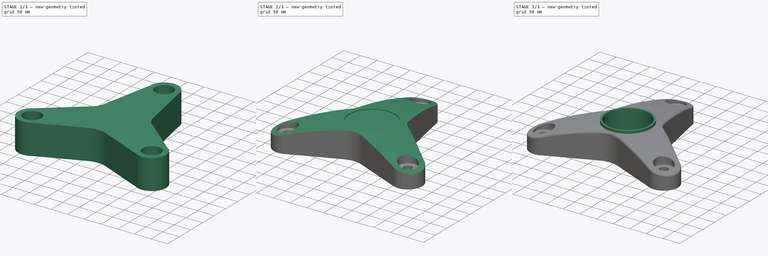
[diagram: build sequence overview — one tinted view per stage of 3, left to right]
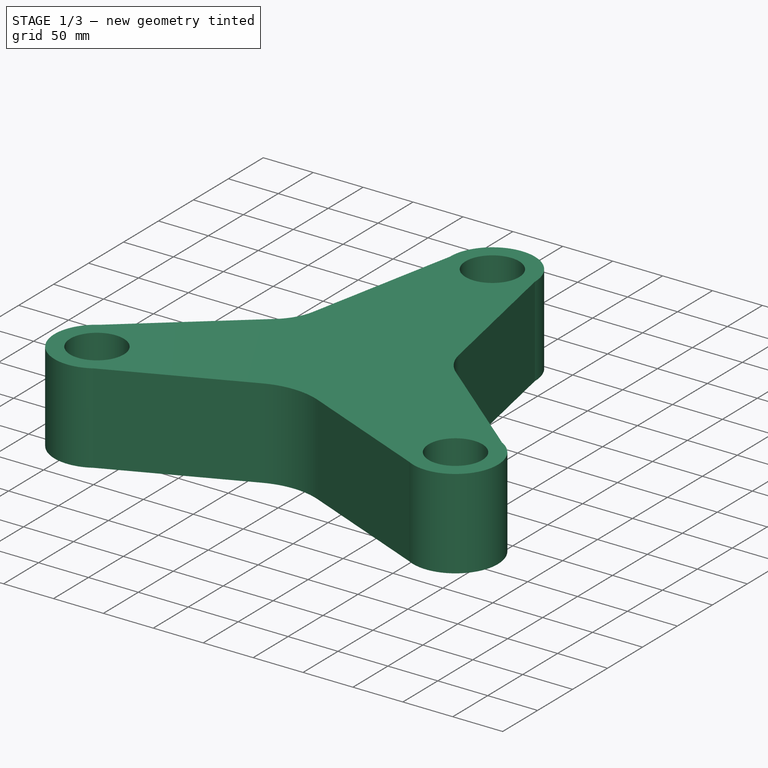
[diagram: stage 1 of 3 — iso view after this stage's code; geometry added in this stage tinted green]
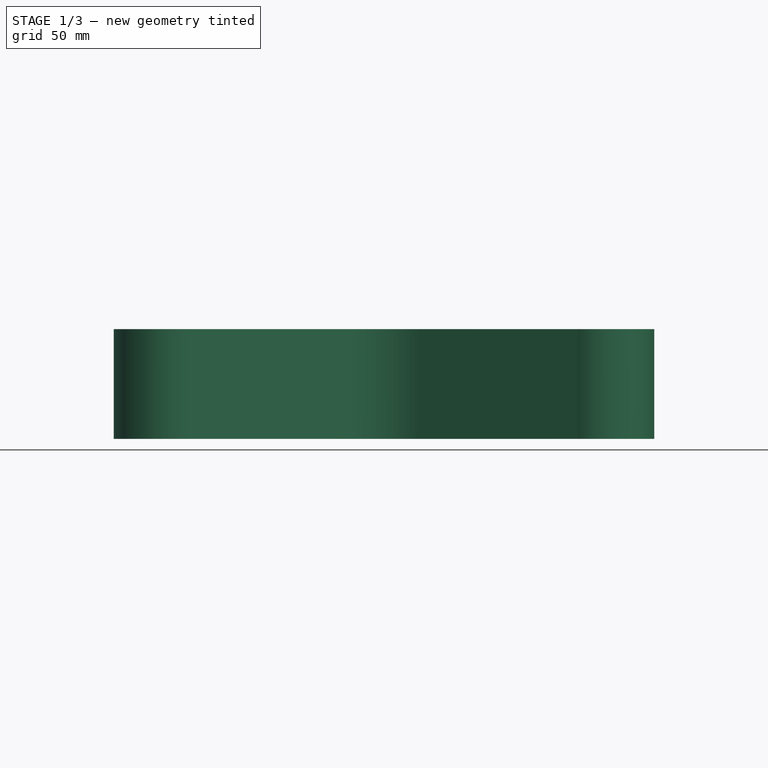
[diagram: stage 1 of 3 — front view after this stage's code; geometry added in this stage tinted green]
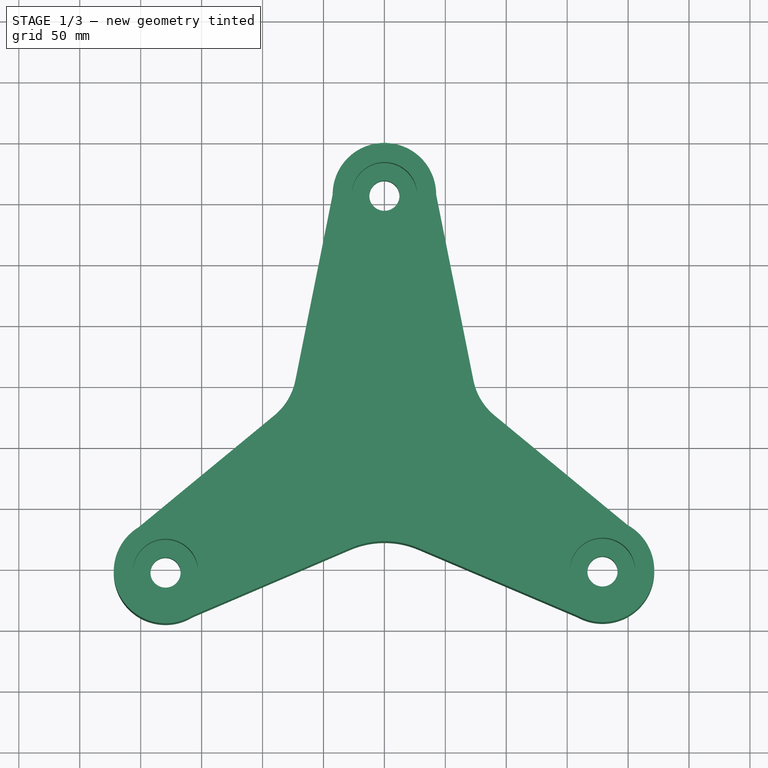
[diagram: stage 1 of 3 — top view after this stage's code; geometry added in this stage tinted green]
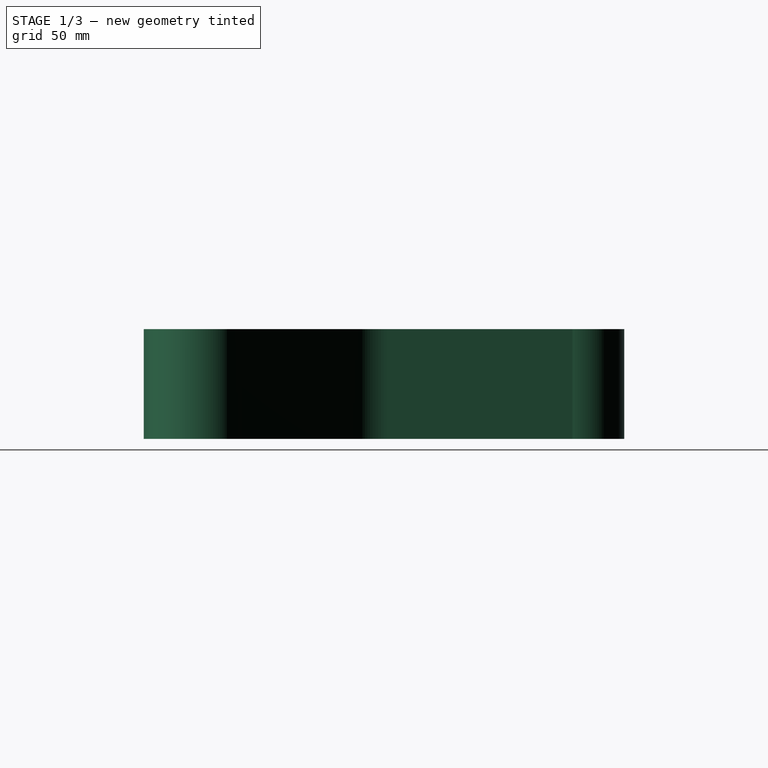
[diagram: stage 1 of 3 — right view after this stage's code; geometry added in this stage tinted green]
FCSTD DOCUMENT  (FreeCAD 0.21R33771 (Git))
Label: ex66
License: All rights reserved
LicenseURL: https://en.wikipedia.org/wiki/All_rights_reserved
objects: Sketcher::SketchObject×7, PartDesign::Pocket×3, PartDesign::Pad×2, PartDesign::Groove×2, PartDesign::Fillet×1, PartDesign::Body×1
note: 24 computed .brp shape members not serialized (recipe doc carries the construction recipe); baked Part::Feature solids carry a one-line shape summary decoded from their .brp

FEATURE [Sketcher::SketchObject] Sketch
  FullyConstrained = false
  MapMode = 5
  Support = -> [XY_Plane]
  sketch-geometry (22):
    g0: ArcOfCircle CenterX=0 CenterY=206.602 CenterZ=0 NormalX=0 NormalY=0 NormalZ=1 AngleXU=0 Radius=42.495 StartAngle=0 EndAngle=3.14159
    g1: ArcOfCircle CenterX=178.967 CenterY=-101.739 CenterZ=0 NormalX=0 NormalY=0 NormalZ=1 AngleXU=0 Radius=42.495 StartAngle=4.20932 EndAngle=7.35092
    g2: ArcOfCircle CenterX=-179.62 CenterY=-102.657 CenterZ=0 NormalX=0 NormalY=0 NormalZ=1 AngleXU=0 Radius=42.495 StartAngle=2.11592 EndAngle=5.25752
    g3: LineSegment StartX=-0.600772 StartY=0.699407 StartZ=0 EndX=-179.62 EndY=-102.657 EndZ=0
    g4: LineSegment StartX=0 StartY=-0.111552 StartZ=0 EndX=0 EndY=206.602 EndZ=0
    g5: LineSegment StartX=-0.051795 StartY=1.61774 StartZ=0 EndX=178.967 EndY=-101.739 EndZ=0
    g6: LineSegment StartX=2.416e-13 StartY=-72.603 StartZ=0 EndX=62.876 EndY=36.3015 EndZ=0
    g7: LineSegment StartX=62.876 StartY=36.3015 StartZ=0 EndX=-62.876 EndY=36.3015 EndZ=0
    g8: LineSegment StartX=-62.876 StartY=36.3015 StartZ=0 EndX=2.416e-13 EndY=-72.603 EndZ=0
    g9: Circle CenterX=0 CenterY=0 CenterZ=0 NormalX=0 NormalY=0 NormalZ=1 AngleXU=0 Radius=72.603
    g10: LineSegment StartX=-90.3203 StartY=25.4176 StartZ=0 EndX=-201.655 EndY=-66.3215 EndZ=0
    g11: LineSegment StartX=-28.0171 StartY=-83.5801 StartZ=0 EndX=-157.585 EndY=-138.993 EndZ=0
    g12: LineSegment StartX=-201.655 StartY=-66.3215 StartZ=0 EndX=-157.585 EndY=-138.993 EndZ=0
    g13: LineSegment StartX=28.0855 StartY=-83.522 StartZ=0 EndX=158.48 EndY=-138.969 EndZ=0
    g14: LineSegment StartX=90.3203 StartY=25.4176 StartZ=0 EndX=199.455 EndY=-64.5088 EndZ=0
    g15: LineSegment StartX=199.455 StartY=-64.5088 StartZ=0 EndX=158.48 EndY=-138.969 EndZ=0
    g16: LineSegment StartX=-42.495 StartY=206.602 StartZ=0 EndX=-73.0539 EndY=54.2375 EndZ=0
    g17: LineSegment StartX=73.0539 StartY=54.2375 StartZ=0 EndX=42.495 EndY=206.602 EndZ=0
    g18: LineSegment StartX=-42.495 StartY=206.602 StartZ=0 EndX=42.495 EndY=206.602 EndZ=0
    g19: ArcOfCircle CenterX=-122.188 CenterY=64.0921 CenterZ=0 NormalX=0 NormalY=0 NormalZ=1 AngleXU=0 Radius=50.1125 StartAngle=5.40159 EndAngle=6.08525
    g20: ArcOfCircle CenterX=122.188 CenterY=64.0921 CenterZ=0 NormalX=0 NormalY=0 NormalZ=1 AngleXU=0 Radius=50.1125 StartAngle=3.33953 EndAngle=4.02319
    g21: ArcOfCircle CenterX=0.102324 CenterY=-149.329 CenterZ=0 NormalX=0 NormalY=0 NormalZ=1 AngleXU=0 Radius=71.51 StartAngle=1.16873 EndAngle=1.97493
  constraints (46):
    c: PointOnObject(g0,g-2)
    c: Equal(g2,g0)
    c: Equal(g0,g1)
    c: Coincident(g3,g2)
    c: Coincident(g4,g0)
    c: Coincident(g5,g1)
    c: Equal(g3,g5)
    c: Equal(g4,g3)
    c: Angle(g4,g3) = 2.0944
    c: Angle(g5,g4) = 2.0944
    c: Coincident(g6,g7)
    c: Coincident(g7,g8)
    c: Coincident(g8,g6)
    c: Equal(g6,g7)
    c: Equal(g6,g8)
    c: PointOnObject(g6,g9)
    c: PointOnObject(g7,g9)
    c: PointOnObject(g8,g9)
    c: Horizontal(g7)
    c: Coincident(g12,g10)
    c: Coincident(g12,g11)
    c: PointOnObject(g2,g12)
    c: PointOnObject(g13,g1)
    c: Coincident(g15,g14)
    c: Coincident(g15,g13)
    c: PointOnObject(g1,g15)
    c: Coincident(g18,g16)
    c: Coincident(g18,g17)
    c: Horizontal(g18)
    c: PointOnObject(g0,g18)
    c: Tangent(g16,g19) = 1.5708
    c: Tangent(g10,g19) = 1.5708
    c: Tangent(g17,g20) = 1.5708
    c: Tangent(g14,g20) = -1.5708
    c: Tangent(g11,g21) = -1.5708
    c: Tangent(g13,g21) = 1.5708
    c: Coincident(g0,g17)
    c: Coincident(g0,g16)
    c: Coincident(g2,g11)
    c: Coincident(g2,g10)
    c: Coincident(g1,g15)
    c: PointOnObject(g1,g15)
    c: Horizontal(g16,g17)
    c: Symmetric(g16,g17,g4)
    c: Symmetric(g10,g14,g4)
    c: Distance(g12) = 84.99
FEATURE [PartDesign::Pad] Pad
  Direction = (0,0,1)
  Length = 90
  Length2 = 10
  Profile = -> Sketch
  ReferenceAxis = -> Sketch [N_Axis]
  Type = 0
FEATURE [Sketcher::SketchObject] Sketch001
  FullyConstrained = false
  MapMode = 5
  Placement = pos=(0,0,90) rot=(0,0,1;0rad)
  sketch-geometry (25):
    g0: ArcOfCircle CenterX=0 CenterY=206.602 CenterZ=0 NormalX=0 NormalY=0 NormalZ=1 AngleXU=0 Radius=42.495 StartAngle=0 EndAngle=3.14159
    g1: ArcOfCircle CenterX=178.967 CenterY=-101.739 CenterZ=0 NormalX=0 NormalY=0 NormalZ=1 AngleXU=0 Radius=42.495 StartAngle=4.20932 EndAngle=7.35092
    g2: ArcOfCircle CenterX=-179.62 CenterY=-102.657 CenterZ=0 NormalX=0 NormalY=0 NormalZ=1 AngleXU=0 Radius=42.495 StartAngle=2.11592 EndAngle=5.25752
    g3: LineSegment StartX=-0.600772 StartY=0.699407 StartZ=0 EndX=-179.62 EndY=-102.657 EndZ=0
    g4: LineSegment StartX=0 StartY=-0.111552 StartZ=0 EndX=0 EndY=206.602 EndZ=0
    g5: LineSegment StartX=-0.051795 StartY=1.61774 StartZ=0 EndX=178.967 EndY=-101.739 EndZ=0
    g6: LineSegment StartX=2.416e-13 StartY=-72.603 StartZ=0 EndX=62.876 EndY=36.3015 EndZ=0
    g7: LineSegment StartX=62.876 StartY=36.3015 StartZ=0 EndX=-62.876 EndY=36.3015 EndZ=0
    g8: LineSegment StartX=-62.876 StartY=36.3015 StartZ=0 EndX=2.416e-13 EndY=-72.603 EndZ=0
    g9: Circle CenterX=0 CenterY=0 CenterZ=0 NormalX=0 NormalY=0 NormalZ=1 AngleXU=0 Radius=72.603
    g10: LineSegment StartX=-90.3203 StartY=25.4176 StartZ=0 EndX=-201.655 EndY=-66.3215 EndZ=0
    g11: LineSegment StartX=-28.0171 StartY=-83.5801 StartZ=0 EndX=-157.585 EndY=-138.993 EndZ=0
    g12: LineSegment StartX=-201.655 StartY=-66.3215 StartZ=0 EndX=-157.585 EndY=-138.993 EndZ=0
    g13: LineSegment StartX=28.0855 StartY=-83.522 StartZ=0 EndX=158.48 EndY=-138.969 EndZ=0
    g14: LineSegment StartX=90.3203 StartY=25.4176 StartZ=0 EndX=199.455 EndY=-64.5088 EndZ=0
    g15: LineSegment StartX=199.455 StartY=-64.5088 StartZ=0 EndX=158.48 EndY=-138.969 EndZ=0
    g16: LineSegment StartX=-42.495 StartY=206.602 StartZ=0 EndX=-73.0539 EndY=54.2375 EndZ=0
    g17: LineSegment StartX=73.0539 StartY=54.2375 StartZ=0 EndX=42.495 EndY=206.602 EndZ=0
    g18: LineSegment StartX=-42.495 StartY=206.602 StartZ=0 EndX=42.495 EndY=206.602 EndZ=0
    g19: ArcOfCircle CenterX=-122.188 CenterY=64.0921 CenterZ=0 NormalX=0 NormalY=0 NormalZ=1 AngleXU=0 Radius=50.1125 StartAngle=5.40159 EndAngle=6.08525
    g20: ArcOfCircle CenterX=122.188 CenterY=64.0921 CenterZ=0 NormalX=0 NormalY=0 NormalZ=1 AngleXU=0 Radius=50.1125 StartAngle=3.33953 EndAngle=4.02319
    g21: ArcOfCircle CenterX=0.102324 CenterY=-149.329 CenterZ=0 NormalX=0 NormalY=0 NormalZ=1 AngleXU=0 Radius=71.51 StartAngle=1.16873 EndAngle=1.97493
    g22: Circle CenterX=-179.62 CenterY=-102.657 CenterZ=0 NormalX=0 NormalY=0 NormalZ=1 AngleXU=0 Radius=26.8066
    g23: Circle CenterX=178.967 CenterY=-101.739 CenterZ=0 NormalX=0 NormalY=0 NormalZ=1 AngleXU=0 Radius=26.8066
    g24: Circle CenterX=0 CenterY=206.602 CenterZ=0 NormalX=0 NormalY=0 NormalZ=1 AngleXU=0 Radius=26.8066
  constraints (51):
    c: PointOnObject(g0,g-2)
    c: Equal(g2,g0)
    c: Equal(g0,g1)
    c: Coincident(g3,g2)
    c: Coincident(g4,g0)
    c: Coincident(g5,g1)
    c: Equal(g3,g5)
    c: Equal(g4,g3)
    c: Angle(g4,g3) = 2.0944
    c: Angle(g5,g4) = 2.0944
    c: Coincident(g6,g7)
    c: Coincident(g7,g8)
    c: Coincident(g8,g6)
    c: Equal(g6,g7)
    c: Equal(g6,g8)
    c: PointOnObject(g6,g9)
    c: PointOnObject(g7,g9)
    c: PointOnObject(g8,g9)
    c: Horizontal(g7)
    c: Coincident(g12,g10)
    c: Coincident(g12,g11)
    c: PointOnObject(g2,g12)
    c: PointOnObject(g13,g1)
    c: Coincident(g15,g14)
    c: Coincident(g15,g13)
    c: PointOnObject(g1,g15)
    c: Coincident(g18,g16)
    c: Coincident(g18,g17)
    c: Horizontal(g18)
    c: PointOnObject(g0,g18)
    c: Tangent(g16,g19) = 1.5708
    c: Tangent(g10,g19) = 1.5708
    c: Tangent(g17,g20) = 1.5708
    c: Tangent(g14,g20) = -1.5708
    c: Tangent(g11,g21) = -1.5708
    c: Tangent(g13,g21) = 1.5708
    c: Coincident(g0,g17)
    c: Coincident(g0,g16)
    c: Coincident(g2,g11)
    c: Coincident(g2,g10)
    c: Coincident(g1,g15)
    c: PointOnObject(g1,g15)
    c: Horizontal(g16,g17)
    c: Symmetric(g16,g17,g4)
    c: Symmetric(g10,g14,g4)
    c: Distance(g12) = 84.99
    c: Coincident(g22,g2)
    c: Coincident(g23,g1)
    c: Coincident(g24,g0)
    c: Equal(g24,g23)
    c: Equal(g23,g22)
FEATURE [PartDesign::Pocket] Pocket
  BaseFeature = -> Pad
  Direction = (0,0,-1)
  Length = 51
  Length2 = 5
  Profile = -> Sketch001
  ReferenceAxis = -> Sketch001 [N_Axis]
  Type = 0
FEATURE [Sketcher::SketchObject] Sketch002
  FullyConstrained = false
  MapMode = 5
  Placement = pos=(0,0,90) rot=(0,0,1;0rad)
  sketch-geometry (25):
    g0: ArcOfCircle CenterX=0 CenterY=206.603 CenterZ=0 NormalX=0 NormalY=0 NormalZ=1 AngleXU=0 Radius=42.495 StartAngle=0 EndAngle=3.14159
    g1: ArcOfCircle CenterX=178.974 CenterY=-101.75 CenterZ=0 NormalX=0 NormalY=0 NormalZ=1 AngleXU=0 Radius=42.495 StartAngle=4.20865 EndAngle=7.35024
    g2: ArcOfCircle CenterX=-179.62 CenterY=-102.657 CenterZ=0 NormalX=0 NormalY=0 NormalZ=1 AngleXU=0 Radius=42.495 StartAngle=2.11605 EndAngle=5.25764
    g3: LineSegment StartX=-0.597144 StartY=0.701501 StartZ=0 EndX=-179.62 EndY=-102.657 EndZ=0
    g4: LineSegment StartX=0 StartY=-0.114364 StartZ=0 EndX=0 EndY=206.603 EndZ=0
    g5: LineSegment StartX=-0.0489775 StartY=1.60862 StartZ=0 EndX=178.974 EndY=-101.75 EndZ=0
    g6: LineSegment StartX=2.416e-13 StartY=-72.603 StartZ=0 EndX=62.876 EndY=36.3015 EndZ=0
    g7: LineSegment StartX=62.876 StartY=36.3015 StartZ=0 EndX=-62.876 EndY=36.3015 EndZ=0
    g8: LineSegment StartX=-62.876 StartY=36.3015 StartZ=0 EndX=2.416e-13 EndY=-72.603 EndZ=0
    g9: Circle CenterX=0 CenterY=0 CenterZ=0 NormalX=0 NormalY=0 NormalZ=1 AngleXU=0 Radius=72.603
    g10: LineSegment StartX=-90.3203 StartY=25.4163 StartZ=0 EndX=-201.659 EndY=-66.3243 EndZ=0
    g11: LineSegment StartX=-28.0185 StartY=-83.5797 StartZ=0 EndX=-157.581 EndY=-138.99 EndZ=0
    g12: LineSegment StartX=-201.659 StartY=-66.3243 StartZ=0 EndX=-157.581 EndY=-138.99 EndZ=0
    g13: LineSegment StartX=28.0875 StartY=-83.5226 StartZ=0 EndX=158.461 EndY=-138.967 EndZ=0
    g14: LineSegment StartX=90.3203 StartY=25.4163 StartZ=0 EndX=199.486 EndY=-64.5338 EndZ=0
    g15: LineSegment StartX=199.486 StartY=-64.5338 StartZ=0 EndX=158.461 EndY=-138.967 EndZ=0
    g16: LineSegment StartX=-42.495 StartY=206.603 StartZ=0 EndX=-73.053 EndY=54.2376 EndZ=0
    g17: LineSegment StartX=73.053 StartY=54.2376 StartZ=0 EndX=42.495 EndY=206.603 EndZ=0
    g18: LineSegment StartX=-42.495 StartY=206.603 StartZ=0 EndX=42.495 EndY=206.603 EndZ=0
    g19: ArcOfCircle CenterX=-122.188 CenterY=64.092 CenterZ=0 NormalX=0 NormalY=0 NormalZ=1 AngleXU=0 Radius=50.1135 StartAngle=5.40158 EndAngle=6.08525
    g20: ArcOfCircle CenterX=122.188 CenterY=64.092 CenterZ=0 NormalX=0 NormalY=0 NormalZ=1 AngleXU=0 Radius=50.1135 StartAngle=3.33952 EndAngle=4.0232
    g21: ArcOfCircle CenterX=0.10146 CenterY=-149.33 CenterZ=0 NormalX=0 NormalY=0 NormalZ=1 AngleXU=0 Radius=71.5113 StartAngle=1.1687 EndAngle=1.97493
    g22: Circle CenterX=-179.62 CenterY=-102.657 CenterZ=0 NormalX=0 NormalY=0 NormalZ=1 AngleXU=0 Radius=12.3837
    g23: Circle CenterX=178.974 CenterY=-101.75 CenterZ=0 NormalX=0 NormalY=0 NormalZ=1 AngleXU=0 Radius=12.3837
    g24: Circle CenterX=0 CenterY=206.603 CenterZ=0 NormalX=0 NormalY=0 NormalZ=1 AngleXU=0 Radius=12.3837
  constraints (51):
    c: PointOnObject(g0,g-2)
    c: Equal(g2,g0)
    c: Equal(g0,g1)
    c: Coincident(g3,g2)
    c: Coincident(g4,g0)
    c: Coincident(g5,g1)
    c: Equal(g3,g5)
    c: Equal(g4,g3)
    c: Angle(g4,g3) = 2.0944
    c: Angle(g5,g4) = 2.0944
    c: Coincident(g6,g7)
    c: Coincident(g7,g8)
    c: Coincident(g8,g6)
    c: Equal(g6,g7)
    c: Equal(g6,g8)
    c: PointOnObject(g6,g9)
    c: PointOnObject(g7,g9)
    c: PointOnObject(g8,g9)
    c: Horizontal(g7)
    c: Coincident(g12,g10)
    c: Coincident(g12,g11)
    c: PointOnObject(g2,g12)
    c: PointOnObject(g13,g1)
    c: Coincident(g15,g14)
    c: Coincident(g15,g13)
    c: PointOnObject(g1,g15)
    c: Coincident(g18,g16)
    c: Coincident(g18,g17)
    c: Horizontal(g18)
    c: PointOnObject(g0,g18)
    c: Tangent(g16,g19) = 1.5708
    c: Tangent(g10,g19) = 1.5708
    c: Tangent(g17,g20) = 1.5708
    c: Tangent(g14,g20) = -1.5708
    c: Tangent(g11,g21) = -1.5708
    c: Tangent(g13,g21) = 1.5708
    c: Coincident(g0,g17)
    c: Coincident(g0,g16)
    c: Coincident(g2,g11)
    c: Coincident(g2,g10)
    c: Coincident(g1,g15)
    c: PointOnObject(g1,g15)
    c: Horizontal(g16,g17)
    c: Symmetric(g16,g17,g4)
    c: Symmetric(g10,g14,g4)
    c: Distance(g12) = 84.99
    c: Coincident(g22,g2)
    c: Coincident(g23,g1)
    c: Coincident(g24,g0)
    c: Equal(g24,g23)
    c: Equal(g23,g22)
FEATURE [PartDesign::Pocket] Pocket001
  BaseFeature = -> Pocket
  Direction = (0,0,-1)
  Length = 5
  Length2 = 5
  Profile = -> Sketch002
  ReferenceAxis = -> Sketch002 [N_Axis]
  Type = 1
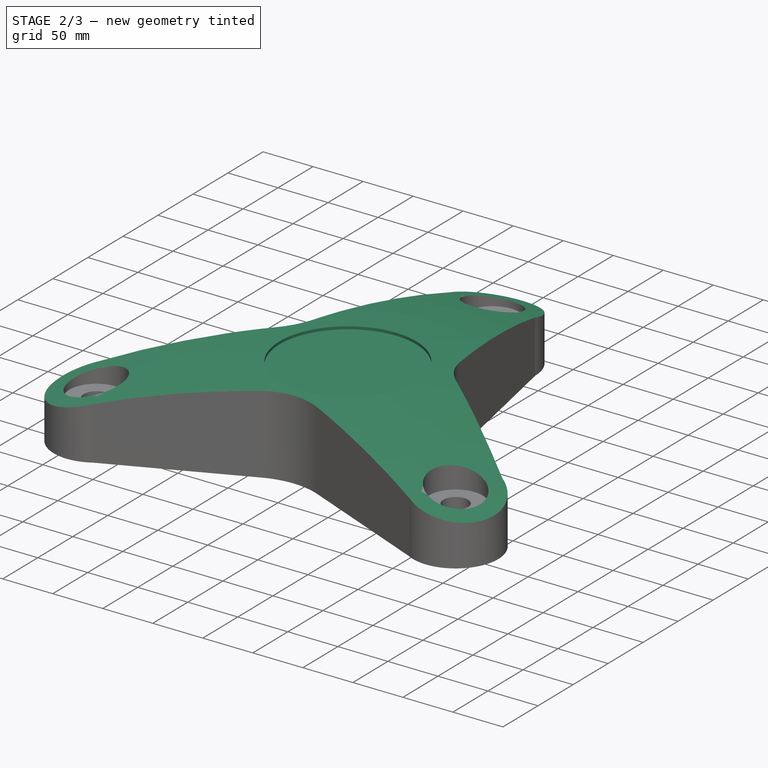
[diagram: stage 2 of 3 — iso view after this stage's code; geometry added in this stage tinted green]
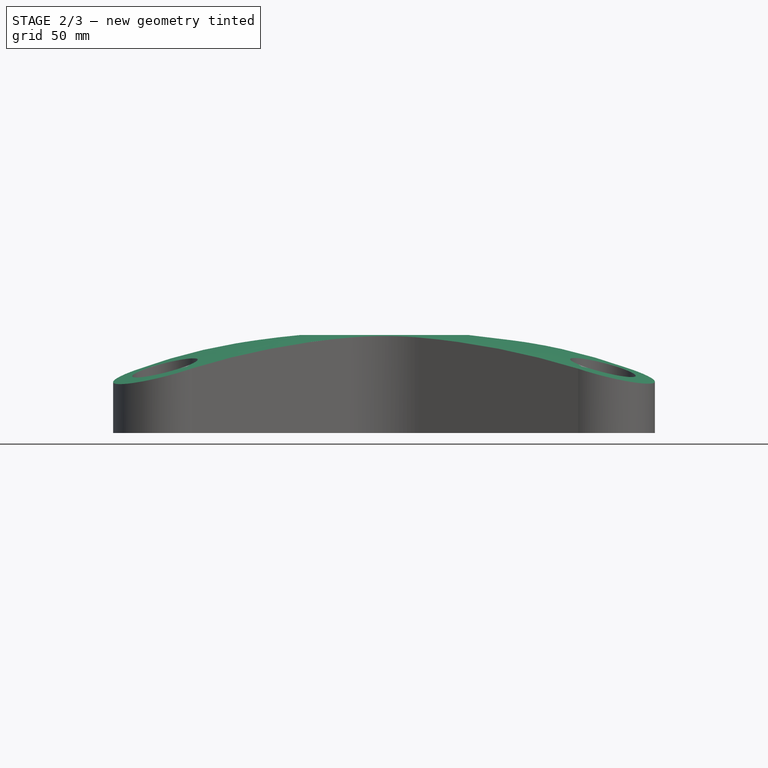
[diagram: stage 2 of 3 — front view after this stage's code; geometry added in this stage tinted green]
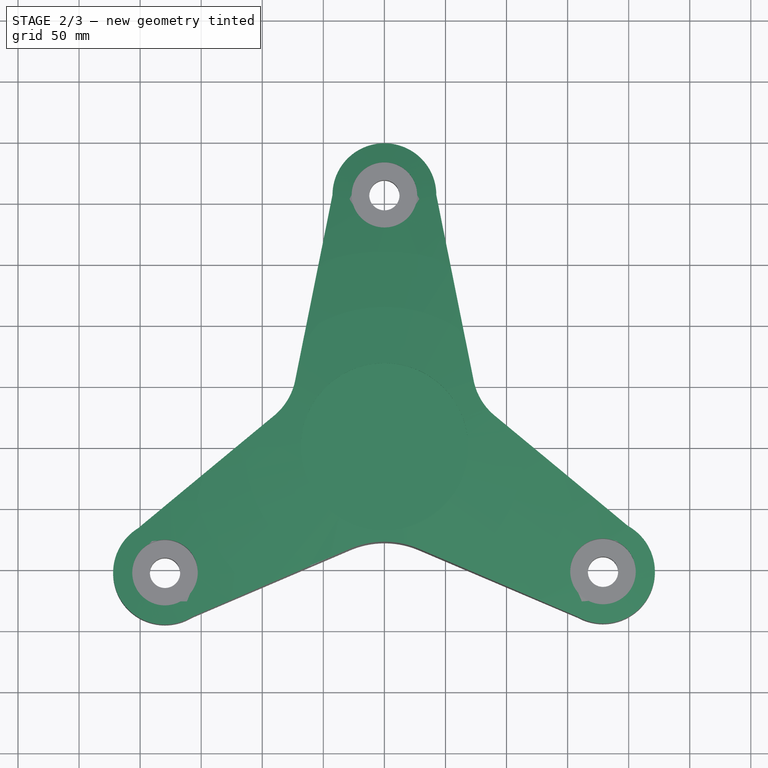
[diagram: stage 2 of 3 — top view after this stage's code; geometry added in this stage tinted green]
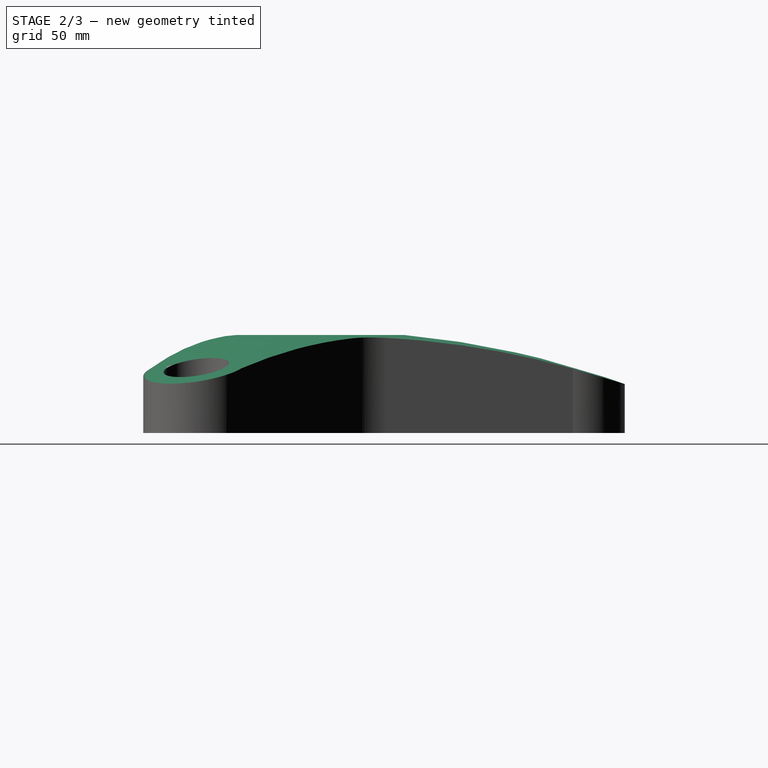
[diagram: stage 2 of 3 — right view after this stage's code; geometry added in this stage tinted green]
FEATURE [Sketcher::SketchObject] Sketch003
  FullyConstrained = false
  MapMode = 5
  Placement = pos=(0,0,0) rot=(1,0,0;1.5708rad)
  Support = -> [XZ_Plane]
  sketch-geometry (6):
    g0: ArcOfCircle CenterX=0 CenterY=-654.137 CenterZ=0 NormalX=0 NormalY=0 NormalZ=1 AngleXU=0 Radius=737.635 StartAngle=1.5708 EndAngle=2.41363
    g1: LineSegment StartX=4.52e-14 StartY=83.4983 StartZ=0 EndX=4.52e-14 EndY=418.682 EndZ=0
    g2: LineSegment StartX=4.52e-14 StartY=418.682 StartZ=0 EndX=-396.474 EndY=434.174 EndZ=0
    g3: LineSegment StartX=-396.474 StartY=434.174 StartZ=0 EndX=-396.474 EndY=434.174 EndZ=0
    g4: LineSegment StartX=-396.474 StartY=434.174 StartZ=0 EndX=-550.666 EndY=-163.349 EndZ=0
    g5: GeomPoint X=0 Y=340.049 Z=0
  constraints (10):
    c: PointOnObject(g0,g-2)
    c: Vertical(g1)
    c: Coincident(g3,g2)
    c: Vertical(g3)
    c: Coincident(g4,g3)
    c: Coincident(g0,g4)
    c: Coincident(g0,g1)
    c: PointOnObject(g5,g1)
    c: PointOnObject(g5,g-2)
    c: Coincident(g1,g2)
FEATURE [PartDesign::Groove] Groove
  Angle = 360
  Axis = (0,-2e-16,1)
  Base = (0,0,0)
  BaseFeature = -> Pocket001
  Profile = -> Sketch003
  ReferenceAxis = -> Sketch003 [V_Axis]
  Reversed = true
FEATURE [Sketcher::SketchObject] Sketch004
  FullyConstrained = false
  MapMode = 5
  Placement = pos=(0,0,0) rot=(1,0,0;1.5708rad)
  Support = -> [XZ_Plane]
  sketch-geometry (5):
    g0: LineSegment StartX=-68.3938 StartY=192.252 StartZ=0 EndX=-68.3938 EndY=77.6441 EndZ=0
    g1: LineSegment StartX=-68.3938 StartY=77.6441 StartZ=0 EndX=0 EndY=77.6441 EndZ=0
    g2: LineSegment StartX=0 StartY=192.252 StartZ=0 EndX=-68.3938 EndY=192.252 EndZ=0
    g3: GeomPoint X=0 Y=134.948 Z=0
    g4: LineSegment StartX=0 StartY=192.252 StartZ=0 EndX=0 EndY=77.6441 EndZ=0
  constraints (9):
    c: Coincident(g0,g1)
    c: Coincident(g2,g0)
    c: Horizontal(g1)
    c: Horizontal(g2)
    c: Vertical(g0)
    c: PointOnObject(g3,g-2)
    c: Vertical(g4)
    c: Coincident(g2,g4)
    c: Coincident(g1,g4)
FEATURE [PartDesign::Groove] Groove001
  Angle = 360
  Axis = (0,-2e-16,1)
  Base = (0,0,0)
  BaseFeature = -> Groove
  Profile = -> Sketch004
  ReferenceAxis = -> Sketch004 [V_Axis]
  Reversed = true
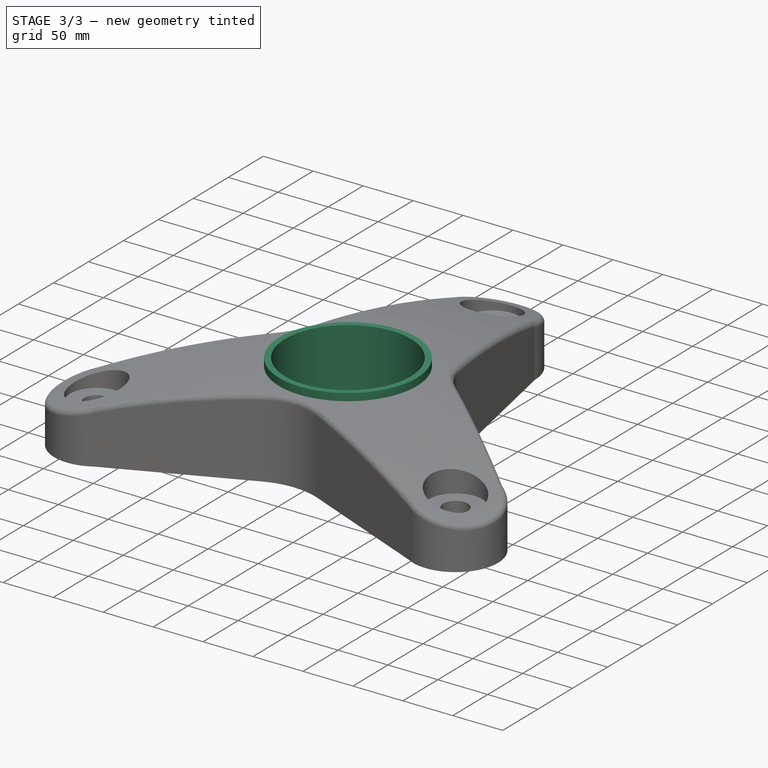
[diagram: stage 3 of 3 — iso view after this stage's code; geometry added in this stage tinted green]
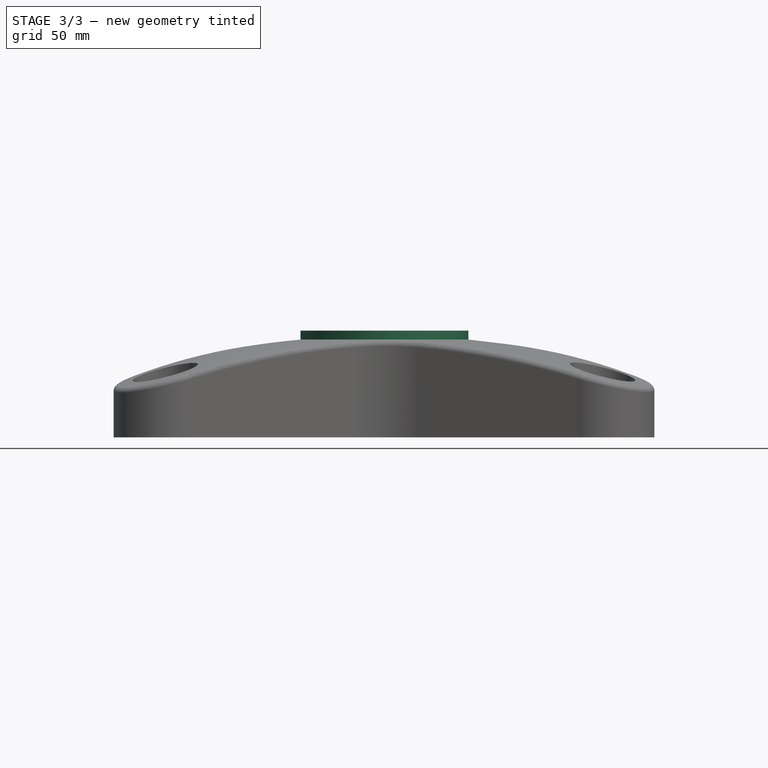
[diagram: stage 3 of 3 — front view after this stage's code; geometry added in this stage tinted green]
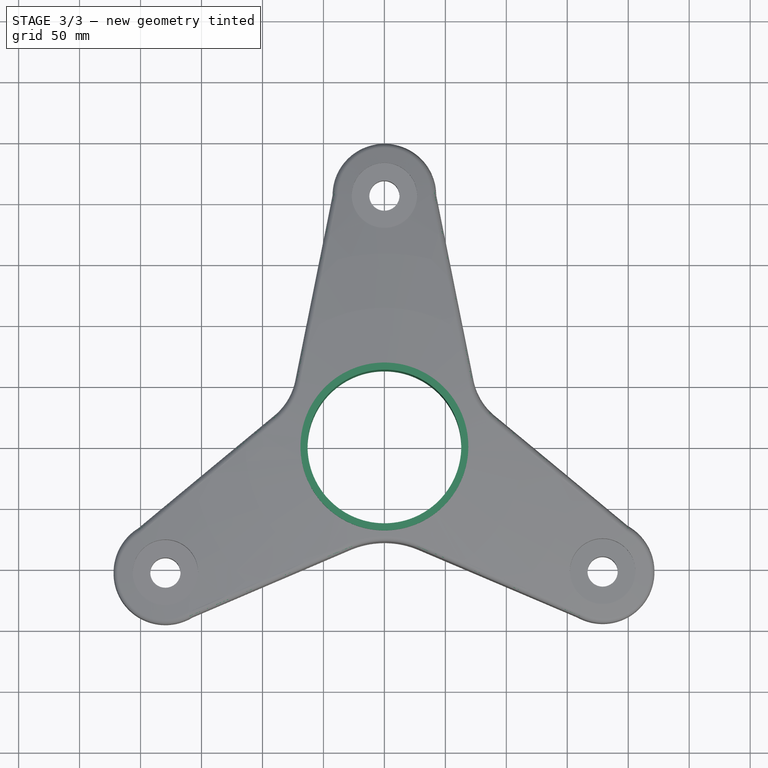
[diagram: stage 3 of 3 — top view after this stage's code; geometry added in this stage tinted green]
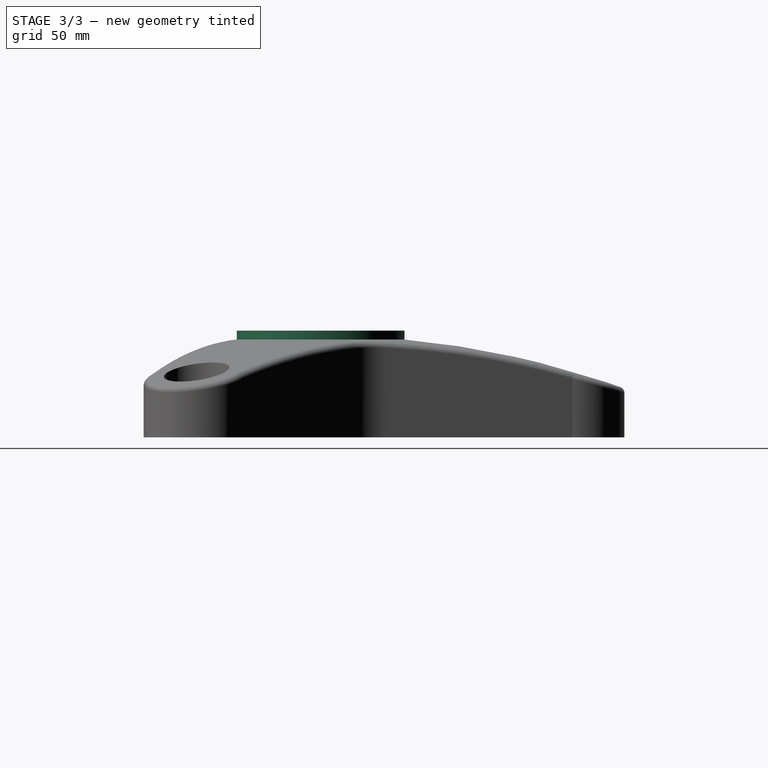
[diagram: stage 3 of 3 — right view after this stage's code; geometry added in this stage tinted green]
FEATURE [Sketcher::SketchObject] Sketch005
  FullyConstrained = false
  MapMode = 5
  Placement = pos=(0,-1.72e-14,77.6441) rot=(0,0,1;0rad)
  Support = -> [Groove001]
  sketch-geometry (2):
    g0: Circle CenterX=0 CenterY=0 CenterZ=0 NormalX=0 NormalY=0 NormalZ=1 AngleXU=0 Radius=68.8365
    g1: Circle CenterX=0 CenterY=0 CenterZ=0 NormalX=0 NormalY=0 NormalZ=1 AngleXU=0 Radius=63.045
  constraints (2):
    c: Coincident(g0,g-1)
    c: Coincident(g1,g0)
FEATURE [PartDesign::Pad] Pad001
  BaseFeature = -> Groove001
  Direction = (0,-2e-16,1)
  Length = 10
  Length2 = 10
  Profile = -> Sketch005
  ReferenceAxis = -> Sketch005 [N_Axis]
  Type = 0
FEATURE [Sketcher::SketchObject] Sketch006
  FullyConstrained = true
  MapMode = 5
  Placement = pos=(0,-1.72e-14,77.6441) rot=(0,0,1;0rad)
  Support = -> [Pad001]
FEATURE [PartDesign::Pocket] Pocket002
  BaseFeature = -> Pad001
  Direction = (0,2e-16,-1)
  Length = 5
  Length2 = 5
  Profile = -> Pad001 [Face27]
  Type = 1
FEATURE [PartDesign::Fillet] Fillet
  Base = -> Pocket002 [Edge32,Edge33,Edge31,Edge30,Edge29,Edge3,Edge28,Edge21,Edge27,Edge26,Edge25,Edge34,Edge36,Edge35]
  BaseFeature = -> Pocket002
  Radius = 5
  SupportTransform = false
  UseAllEdges = false
FEATURE [PartDesign::Body] Body
  Group = -> [Sketch,Pad,Sketch001,Pocket,Sketch002,Pocket001,Sketch003,Groove,Sketch004,Groove001,Sketch005,Pad001,Sketch006,Pocket002,Fillet]
  Origin = -> Origin
  Tip = -> Fillet
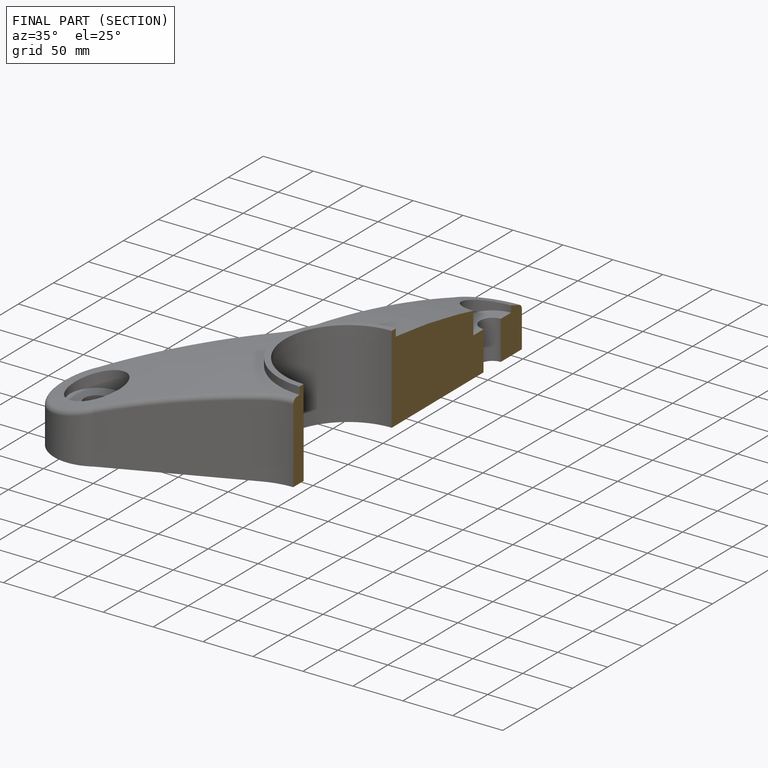
[diagram: finished part — half-section view (interior)]
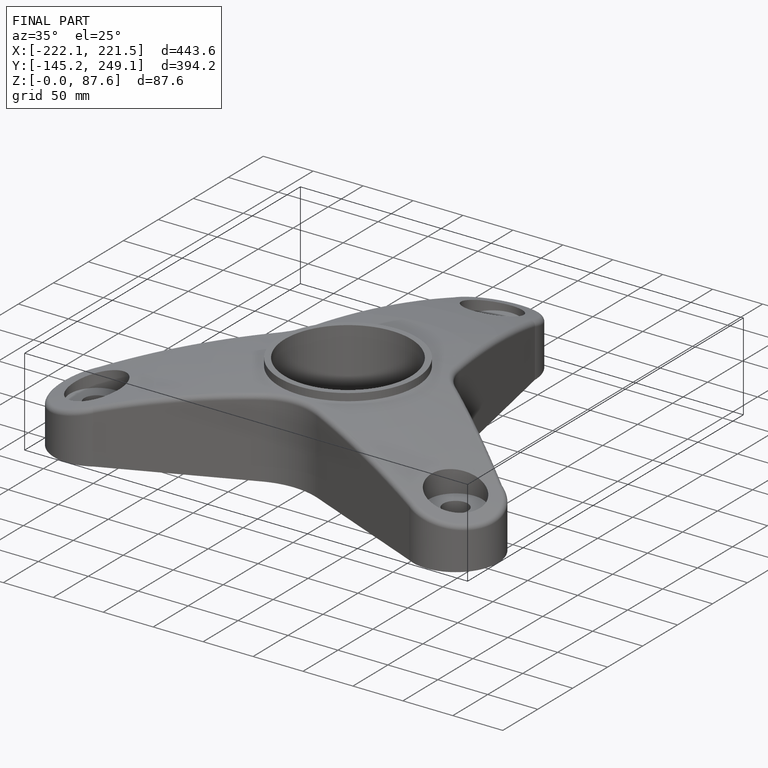
[diagram: finished part — iso view with bounding-box wireframe]
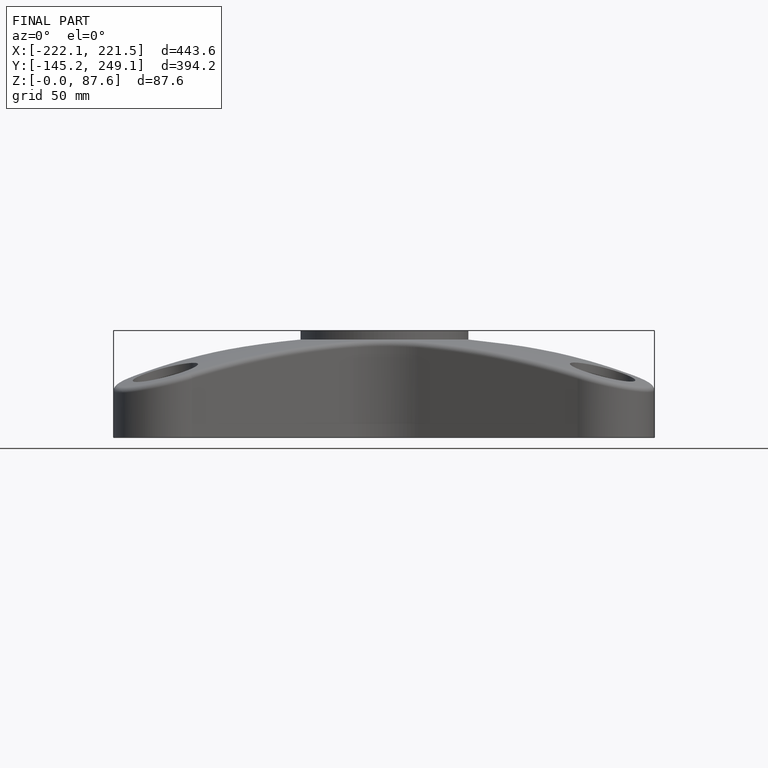
[diagram: finished part — front view with bounding-box wireframe]
